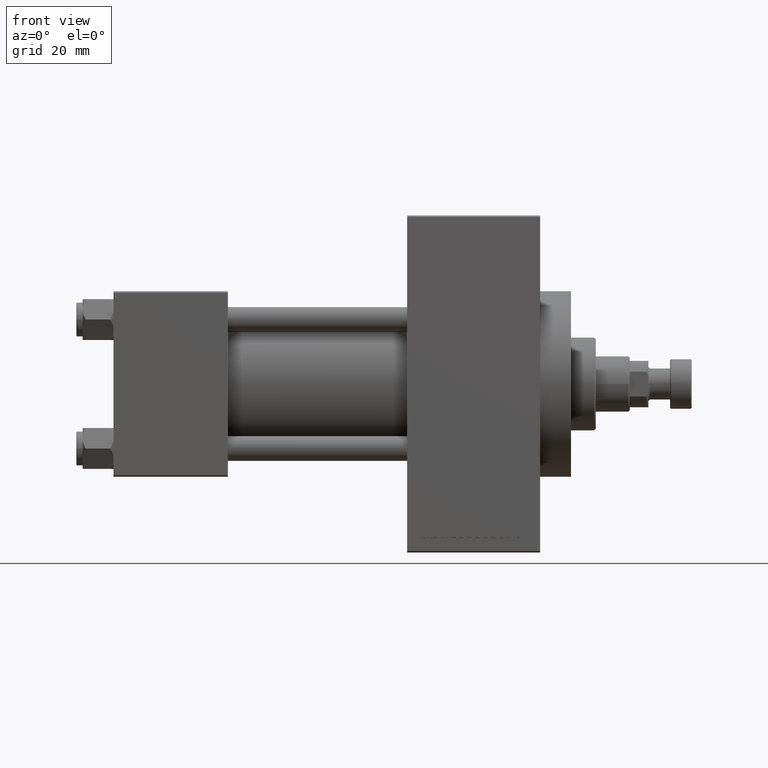
[diagram: clean part render]
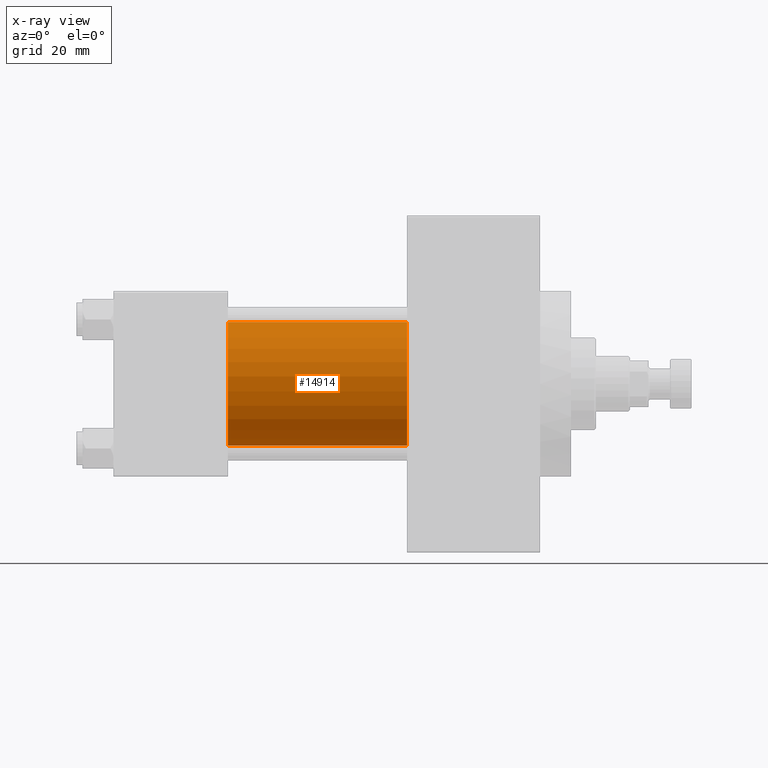
[diagram: x-ray — body ghosted, one internal face saturated and labeled with its STEP entity id]
A machine part, front view, then the same camera in x-ray: the body is ghosted and one INTERNAL B-rep face — a face not visible from any outside direction — is saturated and labeled: STEP entity #14914.
In plain terms, the highlighted cylindrical surface (partial cylindrical patch) has radius 20 mm, axis along (-1, -0, -0).
Its self-contained STEP definition (entity closure, byte-faithful):
#15 = VERTEX_POINT ( 'NONE', #48261 ) ;
#553 = CARTESIAN_POINT ( 'NONE',  ( 95.00000000000000000, -2.602085213965210642E-15, 20.00000000000000000 ) ) ;
#2255 = CARTESIAN_POINT ( 'NONE',  ( 95.00000000000000000, -1.527916156705046464E-16, -20.00000000000000000 ) ) ;
#2572 = DIRECTION ( 'NONE',  ( -1.000000000000000000, -0.000000000000000000, -0.000000000000000000 ) ) ;
#4013 = VERTEX_POINT ( 'NONE', #33490 ) ;
#4156 = CARTESIAN_POINT ( 'NONE',  ( 95.00000000000000000, -2.602085213965210642E-15, 0.000000000000000000 ) ) ;
#4408 = FACE_OUTER_BOUND ( 'NONE', #15810, .T. ) ;
#4661 = DIRECTION ( 'NONE',  ( 0.000000000000000000, 0.000000000000000000, 1.000000000000000000 ) ) ;
#7704 = AXIS2_PLACEMENT_3D ( 'NONE', #4156, #16247, #4661 ) ;
#8163 = EDGE_CURVE ( 'NONE', #11011, #15, #36246, .T. ) ;
#8420 = CIRCLE ( 'NONE', #36563, 20.00000000000000000 ) ;
#9883 = LINE ( 'NONE', #13177, #48282 ) ;
#10874 = CARTESIAN_POINT ( 'NONE',  ( 95.00000000000000000, -1.527916156705046464E-16, -20.00000000000000000 ) ) ;
#11011 = VERTEX_POINT ( 'NONE', #10874 ) ;
#11402 = DIRECTION ( 'NONE',  ( 0.000000000000000000, 0.000000000000000000, -1.000000000000000000 ) ) ;
#11733 = CIRCLE ( 'NONE', #18989, 20.00000000000000000 ) ;
#13177 = CARTESIAN_POINT ( 'NONE',  ( 95.00000000000000000, -2.602085213965210642E-15, 20.00000000000000000 ) ) ;
#14709 = DIRECTION ( 'NONE',  ( 1.000000000000000000, 0.000000000000000000, 0.000000000000000000 ) ) ;
#14914 = ADVANCED_FACE ( 'NONE', ( #4408 ), #38624, .F. ) ;
#15032 = EDGE_CURVE ( 'NONE', #4013, #15, #11733, .T. ) ;
#15286 = VECTOR ( 'NONE', #17608, 1000.000000000000000 ) ;
#15810 = EDGE_LOOP ( 'NONE', ( #30100, #23308, #32352, #24898 ) ) ;
#16247 = DIRECTION ( 'NONE',  ( -1.000000000000000000, -0.000000000000000000, -0.000000000000000000 ) ) ;
#17608 = DIRECTION ( 'NONE',  ( -1.000000000000000000, -0.000000000000000000, -0.000000000000000000 ) ) ;
#18989 = AXIS2_PLACEMENT_3D ( 'NONE', #37584, #14709, #11402 ) ;
#20983 = DIRECTION ( 'NONE',  ( 1.000000000000000000, 0.000000000000000000, 0.000000000000000000 ) ) ;
#21476 = CARTESIAN_POINT ( 'NONE',  ( 95.00000000000000000, -2.602085213965210642E-15, 0.000000000000000000 ) ) ;
#23308 = ORIENTED_EDGE ( 'NONE', *, *, #8163, .T. ) ;
#24898 = ORIENTED_EDGE ( 'NONE', *, *, #28491, .F. ) ;
#28491 = EDGE_CURVE ( 'NONE', #38690, #4013, #9883, .T. ) ;
#30100 = ORIENTED_EDGE ( 'NONE', *, *, #36790, .T. ) ;
#32352 = ORIENTED_EDGE ( 'NONE', *, *, #15032, .F. ) ;
#33490 = CARTESIAN_POINT ( 'NONE',  ( 37.00000000000000000, -2.602085213965210642E-15, 20.00000000000000000 ) ) ;
#36246 = LINE ( 'NONE', #2255, #15286 ) ;
#36563 = AXIS2_PLACEMENT_3D ( 'NONE', #21476, #20983, #36821 ) ;
#36790 = EDGE_CURVE ( 'NONE', #38690, #11011, #8420, .T. ) ;
#36821 = DIRECTION ( 'NONE',  ( 0.000000000000000000, 0.000000000000000000, -1.000000000000000000 ) ) ;
#37584 = CARTESIAN_POINT ( 'NONE',  ( 37.00000000000000000, -2.602085213965210642E-15, 0.000000000000000000 ) ) ;
#38624 = CYLINDRICAL_SURFACE ( 'NONE', #7704, 20.00000000000000000 ) ;
#38690 = VERTEX_POINT ( 'NONE', #553 ) ;
#48261 = CARTESIAN_POINT ( 'NONE',  ( 37.00000000000000000, -1.527916156705046464E-16, -20.00000000000000000 ) ) ;
#48282 = VECTOR ( 'NONE', #2572, 1000.000000000000000 ) ;